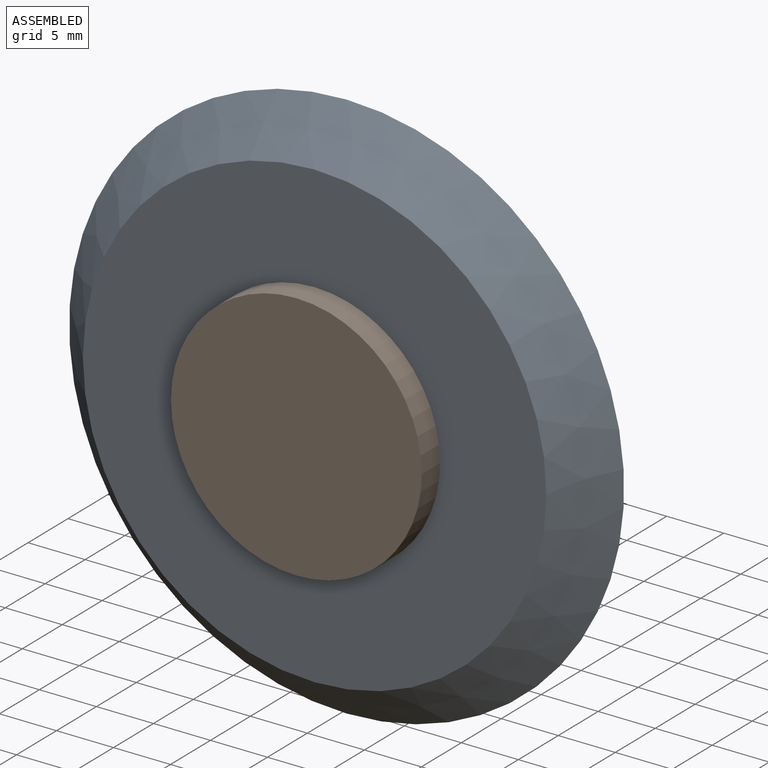
[diagram: assembled view]
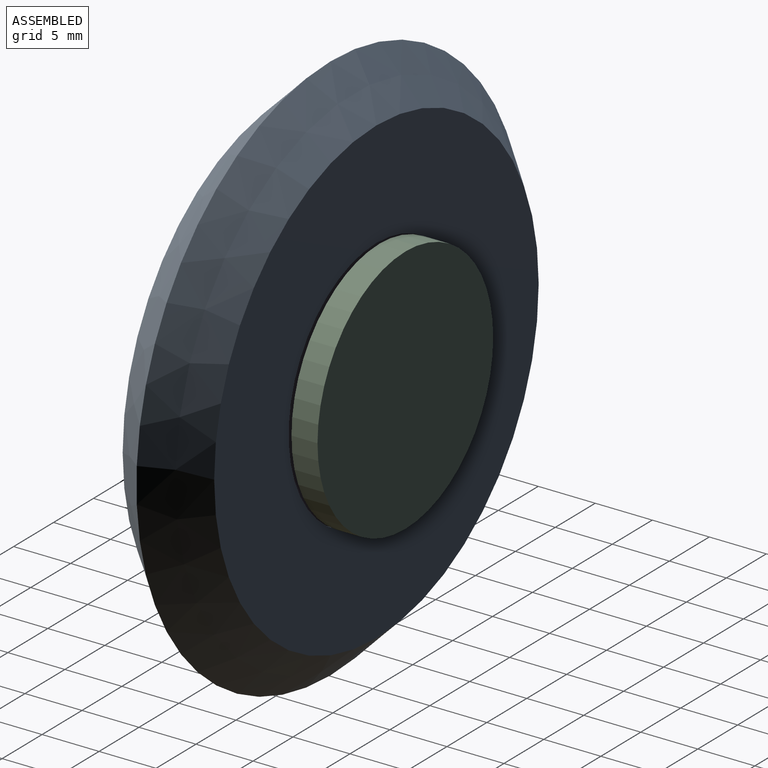
[diagram: assembled view, second angle]
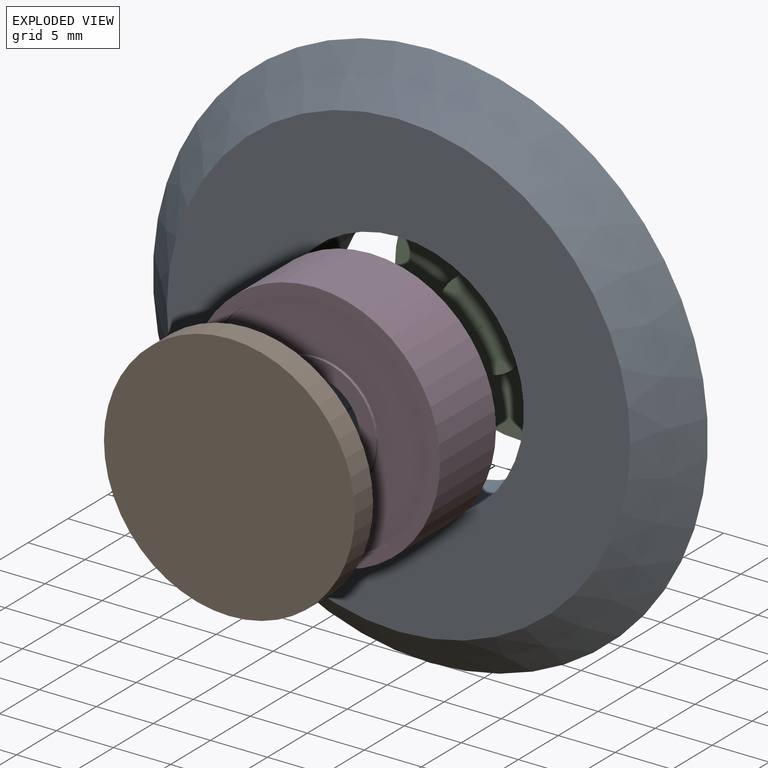
[diagram: exploded view]
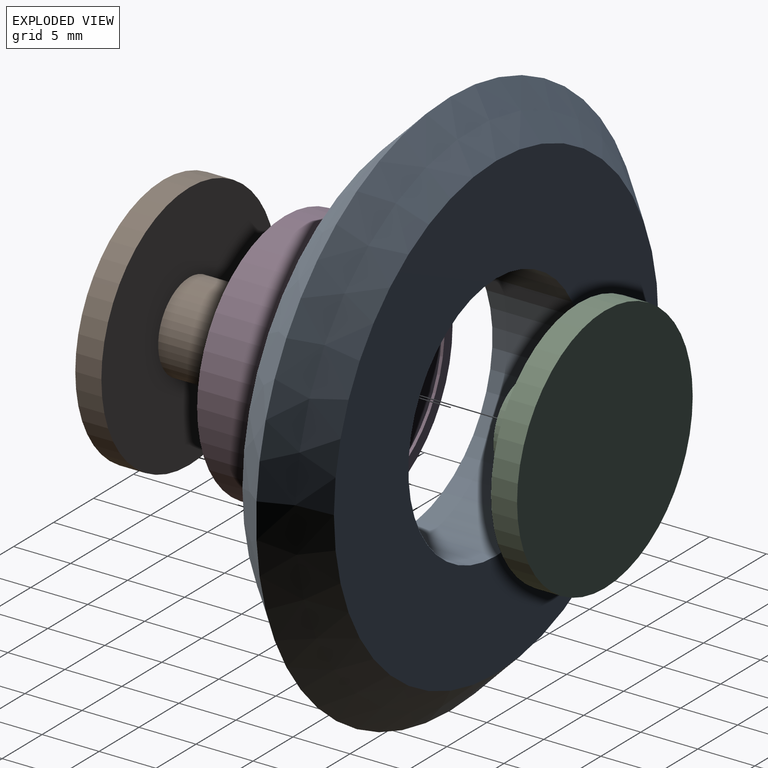
[diagram: exploded view, second angle]
ASSEMBLY  parts=4 mates=3
PART A: 5 faces, bbox 48.7x8x48.7 mm
  f0: plane 40.64x40.64mm, normal (0,-1,0), area 917.2mm2, adj f2,f4
  f1: plane 40.64x40.64mm, normal (0,1,0), area 917.2mm2, adj f2,f3
  f2: cylinder r=11mm len=22mm, axis (0,1,0), area 554.7mm2, adj f0,f1
  f3: cone r=25.4mm half-angle=45deg, axis (0,-1,0), area 796.2mm2, adj f1,f4
  f4: cone r=20.32mm half-angle=45deg, axis (0,1,0), area 796.2mm2, adj f0,f3
PART B: 5 faces, bbox 22x7.1x22 mm
  f0: cylinder r=11mm len=22mm, axis (0,1,0), area 158mm2, adj f1,f2
  f1: plane 22x22mm, normal (0,-1,0), area 332.6mm2, adj f0,f3
  f2: plane 22x22mm, normal (0,1,0), area 380mm2, adj f0
  f3: cylinder r=3.89mm len=7.77mm, axis (0,1,0), area 116.6mm2, adj f1,f4
  f4: plane 7.77x7.77mm, normal (0,-1,0), area 47.4mm2, adj f3
PART C: same geometry as B
PART D: 12 faces, bbox 22x22x7 mm
  f0: plane 10.8x10.8mm, normal (0,0,-1), area 41.3mm2, adj f5,f11
  f1: plane 10.8x10.8mm, normal (0,0,1), area 41.3mm2, adj f5,f8
  f2: plane 22x22mm, normal (0,0,1), area 66.3mm2, adj f4,f6
  f3: plane 22x22mm, normal (0,0,-1), area 66.3mm2, adj f4,f10
  f4: cylinder r=11mm len=22mm, axis (0,0,-1), area 483.8mm2, adj f2,f3
  f5: cylinder r=4mm len=8mm, axis (0,0,-1), area 175.9mm2, adj f0,f1
  f6: cylinder r=9.99mm len=19.99mm, axis (0,0,1), area 16mm2, adj f2,f7
  f7: plane 19.99x19.99mm, normal (0,0,1), area 222.2mm2, adj f6,f8
  f8: cylinder r=5.4mm len=10.8mm, axis (0,0,1), area 8.6mm2, adj f1,f7
  f9: plane 19.99x19.99mm, normal (0,0,-1), area 222.2mm2, adj f10,f11
  f10: cylinder r=9.99mm len=19.99mm, axis (0,0,-1), area 16mm2, adj f3,f9
  f11: cylinder r=5.4mm len=10.8mm, axis (0,0,-1), area 8.6mm2, adj f0,f9
PLACE A t=(-23.3,-18.49,-7.55)mm
PLACE B rot(axis=(1,0,0),180deg) t=(-23.3,-28.8,-7.55)mm
PLACE C t=(-23.3,-15.96,-7.55)mm
PLACE D rot(axis=(0.58,0.58,-0.58),120deg) t=(-23.3,-23.02,-7.55)mm
MATE fastened B.f3 <-> D.f4  axis (0,-1,0) through (-23.3,-26.52,-7.55)mm
MATE fastened D.f4 <-> A.f3  axis (0,-1,0) through (-23.3,-26.52,-7.55)mm
MATE fastened C.f3 <-> D.f4  axis (0,-1,0) through (-23.3,-23.02,-7.55)mm
